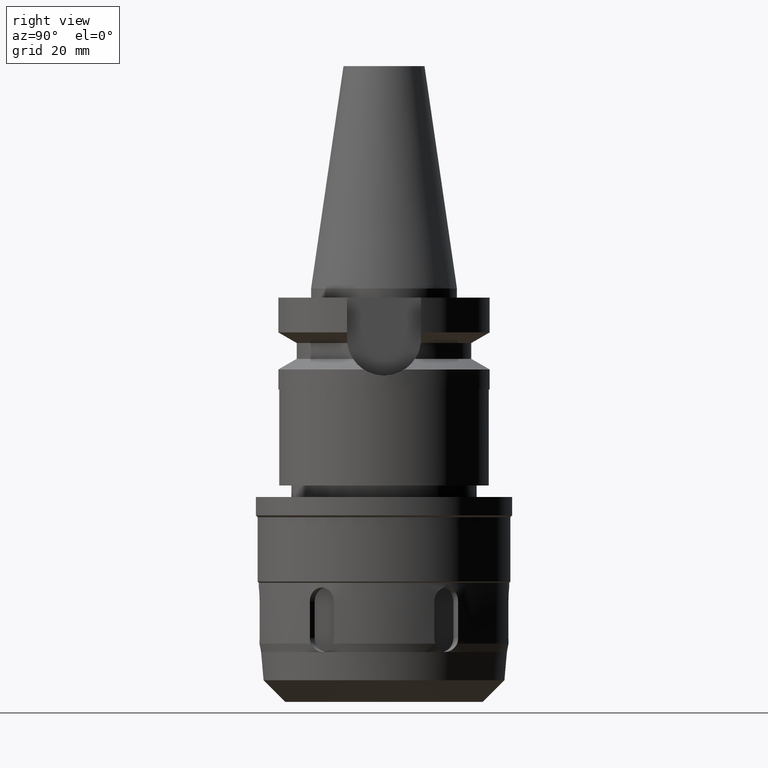
[diagram: clean part render]
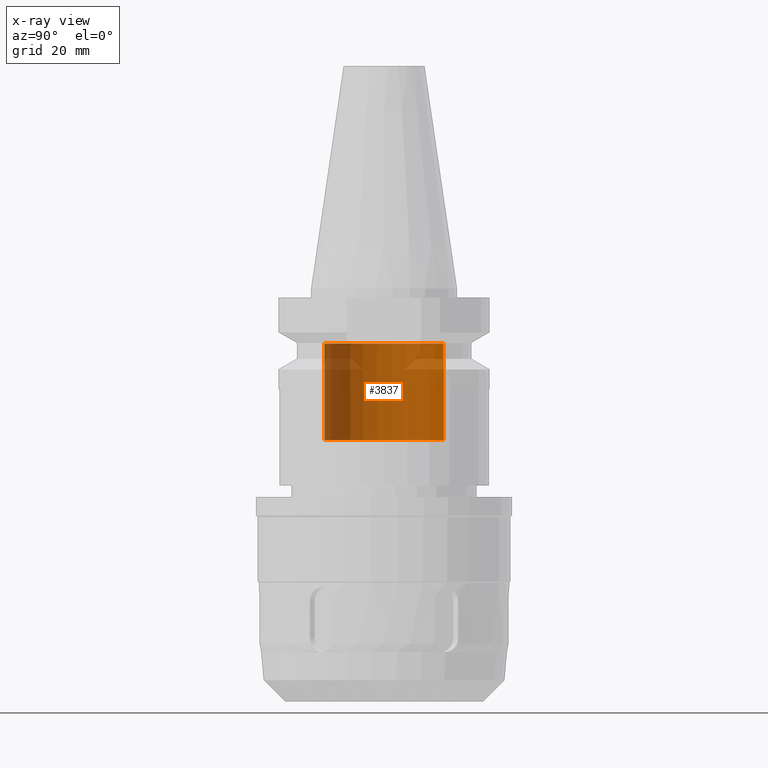
[diagram: x-ray — body ghosted, one internal face saturated and labeled with its STEP entity id]
A machine part, right view, then the same camera in x-ray: the body is ghosted and one INTERNAL B-rep face — a face not visible from any outside direction — is saturated and labeled: STEP entity #3837.
In plain terms, the highlighted cylindrical surface (partial cylindrical patch) has radius 13 mm, axis along (0, 0, -1).
Its self-contained STEP definition (entity closure, byte-faithful):
#1900=CARTESIAN_POINT('',(0.E0,1.902121408436E-14,-3.3E1));
#1901=DIRECTION('',(0.E0,0.E0,-1.E0));
#1902=DIRECTION('',(0.E0,-1.E0,0.E0));
#1903=AXIS2_PLACEMENT_3D('',#1900,#1901,#1902);
#1932=DIRECTION('',(0.E0,0.E0,1.E0));
#1933=VECTOR('',#1932,2.1E1);
#1934=CARTESIAN_POINT('',(0.E0,-1.3E1,-3.3E1));
#1935=LINE('',#1934,#1933);
#1939=DIRECTION('',(0.E0,0.E0,1.E0));
#1940=VECTOR('',#1939,2.1E1);
#1941=CARTESIAN_POINT('',(0.E0,1.3E1,-3.3E1));
#1942=LINE('',#1941,#1940);
#1954=CARTESIAN_POINT('',(0.E0,1.902121408436E-14,-1.2E1));
#1955=DIRECTION('',(0.E0,0.E0,1.E0));
#1956=DIRECTION('',(0.E0,1.E0,0.E0));
#1957=AXIS2_PLACEMENT_3D('',#1954,#1955,#1956);
#2226=CARTESIAN_POINT('',(0.E0,-1.3E1,-1.2E1));
#2227=CARTESIAN_POINT('',(0.E0,1.3E1,-1.2E1));
#2228=VERTEX_POINT('',#2226);
#2229=VERTEX_POINT('',#2227);
#2230=CARTESIAN_POINT('',(0.E0,1.3E1,-3.3E1));
#2231=VERTEX_POINT('',#2230);
#2232=CARTESIAN_POINT('',(0.E0,-1.3E1,-3.3E1));
#2233=VERTEX_POINT('',#2232);
#3823=CARTESIAN_POINT('',(0.E0,1.902121408436E-14,5.532E1));
#3824=DIRECTION('',(0.E0,0.E0,-1.E0));
#3825=DIRECTION('',(0.E0,-1.E0,0.E0));
#3826=AXIS2_PLACEMENT_3D('',#3823,#3824,#3825);
#3827=CYLINDRICAL_SURFACE('',#3826,1.3E1);
#3829=ORIENTED_EDGE('',*,*,#3828,.F.);
#3830=ORIENTED_EDGE('',*,*,#3812,.F.);
#3832=ORIENTED_EDGE('',*,*,#3831,.T.);
#3834=ORIENTED_EDGE('',*,*,#3833,.F.);
#3835=EDGE_LOOP('',(#3829,#3830,#3832,#3834));
#3836=FACE_OUTER_BOUND('',#3835,.F.);
#1904=CIRCLE('',#1903,1.3E1);
#1958=CIRCLE('',#1957,1.3E1);
#3812=EDGE_CURVE('',#2233,#2231,#1904,.T.);
#3828=EDGE_CURVE('',#2231,#2229,#1942,.T.);
#3831=EDGE_CURVE('',#2233,#2228,#1935,.T.);
#3833=EDGE_CURVE('',#2229,#2228,#1958,.T.);
#3837=ADVANCED_FACE('',(#3836),#3827,.F.);